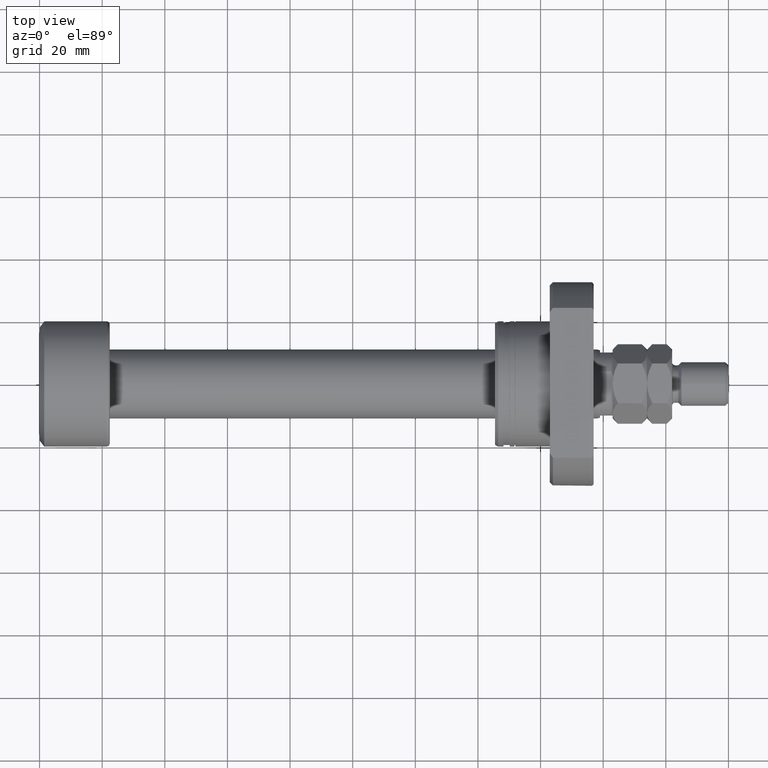
[diagram: clean part render]
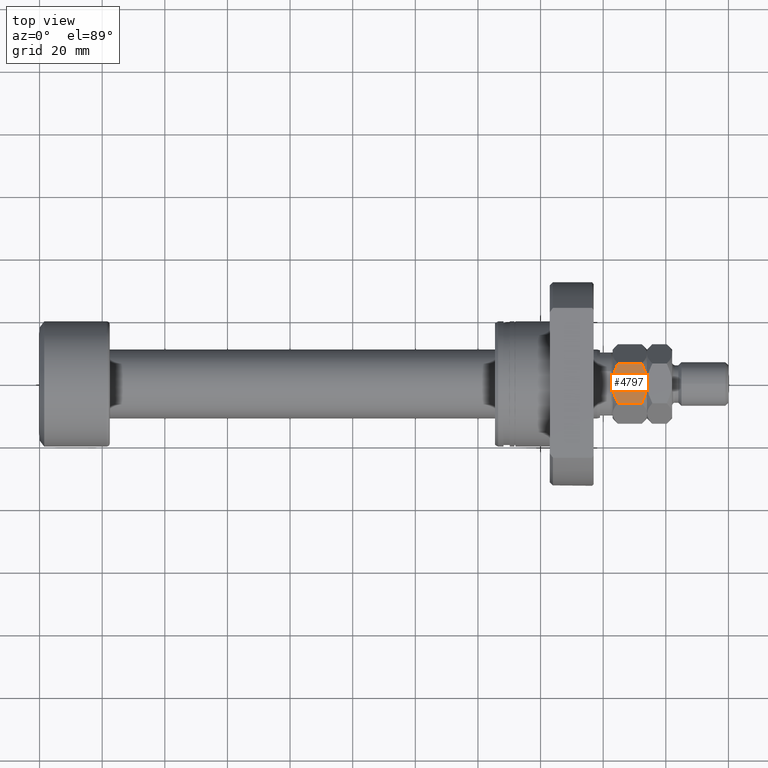
[diagram: same view with one face highlighted and labeled with its STEP entity id]
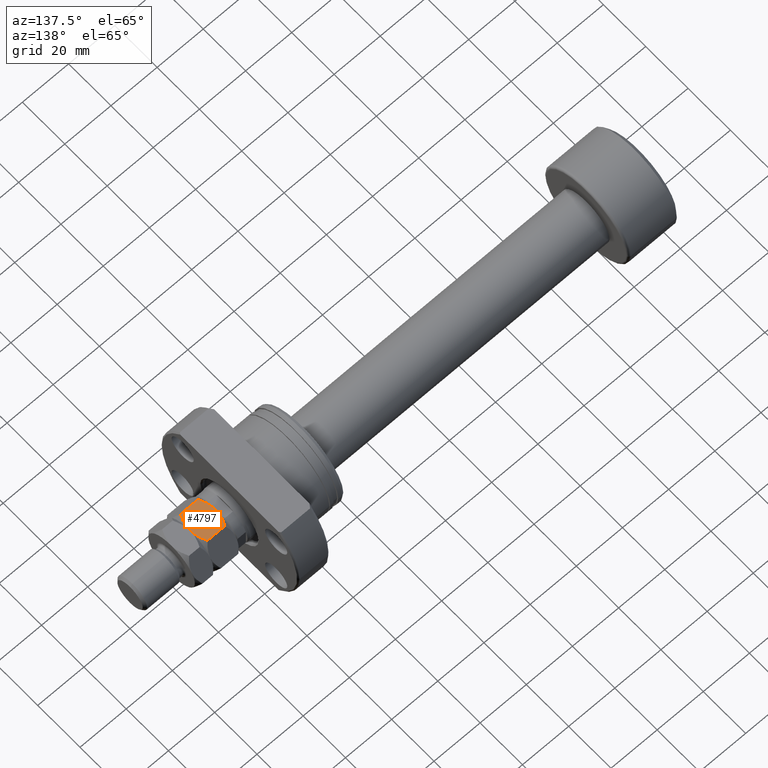
[diagram: same view with one face highlighted and labeled with its STEP entity id]
A machine part, top view. The second image highlights one B-rep face of the part: STEP entity #4797.
A second angle (auxiliary view) of the same face is appended — the face is thin or edge-on in the first view.
In plain terms, the highlighted planar face has unit normal (0, -0, -1).
Its self-contained STEP definition (entity closure, byte-faithful):
#66 = CARTESIAN_POINT ( 'NONE',  ( -11.00000000000000000, 0.000000000000000000, 0.000000000000000000 ) ) ;
#78 = VECTOR ( 'NONE', #696, 1000.000000000000000 ) ;
#179 = CARTESIAN_POINT ( 'NONE',  ( -11.00000000000000000, 6.350852961085890591, 11.00000000000000000 ) ) ;
#228 = CARTESIAN_POINT ( 'NONE',  ( -11.00000000000000000, 6.350852961085890591, 9.298294077828234805 ) ) ;
#300 = VERTEX_POINT ( 'NONE', #66 ) ;
#346 = EDGE_CURVE ( 'NONE', #1484, #2998, #1727, .T. ) ;
#352 = CARTESIAN_POINT ( 'NONE',  ( -11.00000000000000000, -6.350852961085885262, 1.701705922171762309 ) ) ;
#545 = CARTESIAN_POINT ( 'NONE',  ( -10.99999999999999467, 0.000000000000000000, 11.00000000000000000 ) ) ;
#587 = CARTESIAN_POINT ( 'NONE',  ( -11.00000000000000178, 1.381217716854158839, 10.91695300848609840 ) ) ;
#645 = CARTESIAN_POINT ( 'NONE',  ( -10.99999999999999822, 5.363576505757334800, 1.208067694507487744 ) ) ;
#655 = VERTEX_POINT ( 'NONE', #1891 ) ;
#657 = DIRECTION ( 'NONE',  ( -0.000000000000000000, -0.000000000000000000, -1.000000000000000000 ) ) ;
#689 = B_SPLINE_CURVE_WITH_KNOTS ( 'NONE', 3,
 ( #352, #1794, #1840, #1862, #768, #1478, #4775, #4043, #3311, #3267, #2204, #1089 ),
 .UNSPECIFIED., .F., .F.,
 ( 4, 2, 2, 2, 2, 4 ),
 ( 0.01886453216956118784, 0.02051917601608022057, 0.02217381986259925677, 0.02382846370911829298, 0.02465578563237780935, 0.02548310755563732571 ),
 .UNSPECIFIED. ) ;
#696 = DIRECTION ( 'NONE',  ( -0.000000000000000000, -0.000000000000000000, -1.000000000000000000 ) ) ;
#768 = CARTESIAN_POINT ( 'NONE',  ( -11.00000000000000000, -3.802713407336412832, 0.6276910765349058563 ) ) ;
#781 = VERTEX_POINT ( 'NONE', #4213 ) ;
#786 = CARTESIAN_POINT ( 'NONE',  ( -11.00000000000000178, 1.099784029505287197, 0.04170177774201792864 ) ) ;
#872 = VERTEX_POINT ( 'NONE', #228 ) ;
#901 = CARTESIAN_POINT ( 'NONE',  ( -11.00000000000000355, 2.743986917173868889, 10.67427553246086447 ) ) ;
#956 = CARTESIAN_POINT ( 'NONE',  ( -11.00000000000000000, -6.350852961085885262, 9.298294077828238358 ) ) ;
#1045 = CARTESIAN_POINT ( 'NONE',  ( -11.00000000000000000, -6.350852961085885262, 11.00000000000000000 ) ) ;
#1089 = CARTESIAN_POINT ( 'NONE',  ( -11.00000000000000000, 0.000000000000000000, 0.000000000000000000 ) ) ;
#1176 = CARTESIAN_POINT ( 'NONE',  ( -11.00000000000000000, -6.350852961085885262, 9.298294077828238358 ) ) ;
#1371 = CARTESIAN_POINT ( 'NONE',  ( -11.00000000000000178, -1.099784029505286753, 10.95829822225798189 ) ) ;
#1478 = CARTESIAN_POINT ( 'NONE',  ( -11.00000000000000355, -2.743986917173865336, 0.3257244675391401389 ) ) ;
#1484 = VERTEX_POINT ( 'NONE', #1176 ) ;
#1578 = EDGE_CURVE ( 'NONE', #2998, #300, #689, .T. ) ;
#1717 = ORIENTED_EDGE ( 'NONE', *, *, #2213, .F. ) ;
#1722 = DIRECTION ( 'NONE',  ( -0.000000000000000000, 0.000000000000000000, -1.000000000000000000 ) ) ;
#1727 = LINE ( 'NONE', #1045, #2471 ) ;
#1794 = CARTESIAN_POINT ( 'NONE',  ( -10.99999999999999822, -5.856287164594788486, 1.454423023926191938 ) ) ;
#1840 = CARTESIAN_POINT ( 'NONE',  ( -11.00000000000000178, -5.349315167928746284, 1.222704691498690321 ) ) ;
#1862 = CARTESIAN_POINT ( 'NONE',  ( -10.99999999999999822, -4.323029509133801795, 0.8096537352537663823 ) ) ;
#1891 = CARTESIAN_POINT ( 'NONE',  ( -11.00000000000000000, 6.350852961085892368, 1.701705922171765195 ) ) ;
#1927 = EDGE_CURVE ( 'NONE', #872, #655, #2884, .T. ) ;
#2204 = CARTESIAN_POINT ( 'NONE',  ( -11.00000000000000000, -0.2746235576716408167, 4.192813088908779283E-17 ) ) ;
#2213 = EDGE_CURVE ( 'NONE', #300, #655, #3811, .T. ) ;
#2382 = CARTESIAN_POINT ( 'NONE',  ( -10.99999999999999467, 0.000000000000000000, 11.00000000000000000 ) ) ;
#2386 = CARTESIAN_POINT ( 'NONE',  ( -11.00000000000000178, -0.5516605423237683770, 11.00000000000000355 ) ) ;
#2411 = CARTESIAN_POINT ( 'NONE',  ( -11.00000000000000000, -2.731989201781029220, 10.67753305448841772 ) ) ;
#2415 = CARTESIAN_POINT ( 'NONE',  ( -11.00000000000000178, 4.344649988696095200, 0.7819333922108999690 ) ) ;
#2430 = CARTESIAN_POINT ( 'NONE',  ( -11.00000000000000000, 1.102880524211963253, 10.94828572630293273 ) ) ;
#2471 = VECTOR ( 'NONE', #657, 1000.000000000000000 ) ;
#2482 = CARTESIAN_POINT ( 'NONE',  ( -10.99999999999999822, -5.363576505757326807, 9.791932305492514033 ) ) ;
#2610 = AXIS2_PLACEMENT_3D ( 'NONE', #4607, #3836, #1722 ) ;
#2751 = ORIENTED_EDGE ( 'NONE', *, *, #346, .F. ) ;
#2800 = CARTESIAN_POINT ( 'NONE',  ( -11.00000000000000178, -4.344649988696089871, 10.21806660778910114 ) ) ;
#2814 = PLANE ( 'NONE',  #2610 ) ;
#2823 = CARTESIAN_POINT ( 'NONE',  ( -10.99999999999999822, 4.323029509133805348, 10.19034626474623195 ) ) ;
#2843 = CARTESIAN_POINT ( 'NONE',  ( -10.99999999999999822, 2.205563362884376488, 10.79423439979602861 ) ) ;
#2884 = LINE ( 'NONE', #179, #78 ) ;
#2983 = B_SPLINE_CURVE_WITH_KNOTS ( 'NONE', 3,
 ( #545, #2386, #1371, #3524, #2411, #2800, #2482, #956 ),
 .UNSPECIFIED., .F., .F.,
 ( 4, 2, 2, 4 ),
 ( 0.02548310755563732918, 0.02714502201312678914, 0.02880693647061624910, 0.03213076538559517248 ),
 .UNSPECIFIED. ) ;
#2998 = VERTEX_POINT ( 'NONE', #3060 ) ;
#3060 = CARTESIAN_POINT ( 'NONE',  ( -11.00000000000000000, -6.350852961085885262, 1.701705922171762309 ) ) ;
#3092 = CARTESIAN_POINT ( 'NONE',  ( -11.00000000000000000, 0.000000000000000000, 0.000000000000000000 ) ) ;
#3106 = CARTESIAN_POINT ( 'NONE',  ( -10.99999999999999822, 5.856287164594794703, 9.545576976073807174 ) ) ;
#3149 = CARTESIAN_POINT ( 'NONE',  ( -11.00000000000000000, 3.802713407336418605, 10.37230892346509670 ) ) ;
#3190 = ORIENTED_EDGE ( 'NONE', *, *, #4389, .F. ) ;
#3263 = B_SPLINE_CURVE_WITH_KNOTS ( 'NONE', 3,
 ( #3884, #3106, #4318, #2823, #3149, #901, #2843, #587, #2430, #4632, #4659, #2382 ),
 .UNSPECIFIED., .F., .F.,
 ( 4, 2, 2, 2, 2, 4 ),
 ( 0.01886453216956118090, 0.02051917601608021710, 0.02217381986259925331, 0.02382846370911829298, 0.02465578563237780935, 0.02548310755563732918 ),
 .UNSPECIFIED. ) ;
#3267 = CARTESIAN_POINT ( 'NONE',  ( -11.00000000000000178, -0.5501206218979342033, 0.01029861699449343727 ) ) ;
#3311 = CARTESIAN_POINT ( 'NONE',  ( -11.00000000000000000, -1.102880524211966140, 0.05171427369706943500 ) ) ;
#3524 = CARTESIAN_POINT ( 'NONE',  ( -10.99999999999999822, -2.189438957741030478, 10.79717463374928421 ) ) ;
#3575 = CARTESIAN_POINT ( 'NONE',  ( -11.00000000000000000, 6.350852961085892368, 1.701705922171765195 ) ) ;
#3600 = CARTESIAN_POINT ( 'NONE',  ( -11.00000000000000000, 2.731989201781030108, 0.3224669455115858896 ) ) ;
#3791 = EDGE_LOOP ( 'NONE', ( #4330, #2751, #4108, #3190, #4030, #1717 ) ) ;
#3811 = B_SPLINE_CURVE_WITH_KNOTS ( 'NONE', 3,
 ( #3092, #3847, #786, #3866, #3600, #2415, #645, #3575 ),
 .UNSPECIFIED., .F., .F.,
 ( 4, 2, 2, 4 ),
 ( 0.02548310755563732571, 0.02714502201312678914, 0.02880693647061625257, 0.03213076538559517942 ),
 .UNSPECIFIED. ) ;
#3836 = DIRECTION ( 'NONE',  ( 1.000000000000000000, 0.000000000000000000, -0.000000000000000000 ) ) ;
#3847 = CARTESIAN_POINT ( 'NONE',  ( -11.00000000000000178, 0.5516605423237670447, -8.385626177817573357E-17 ) ) ;
#3866 = CARTESIAN_POINT ( 'NONE',  ( -10.99999999999999822, 2.189438957741033587, 0.2028253662507157051 ) ) ;
#3884 = CARTESIAN_POINT ( 'NONE',  ( -11.00000000000000000, 6.350852961085890591, 9.298294077828234805 ) ) ;
#3913 = EDGE_CURVE ( 'NONE', #781, #1484, #2983, .T. ) ;
#4030 = ORIENTED_EDGE ( 'NONE', *, *, #1927, .T. ) ;
#4043 = CARTESIAN_POINT ( 'NONE',  ( -11.00000000000000178, -1.381217716854155286, 0.08304699151390193546 ) ) ;
#4108 = ORIENTED_EDGE ( 'NONE', *, *, #3913, .F. ) ;
#4213 = CARTESIAN_POINT ( 'NONE',  ( -10.99999999999999467, 0.000000000000000000, 11.00000000000000000 ) ) ;
#4318 = CARTESIAN_POINT ( 'NONE',  ( -11.00000000000000178, 5.349315167928749837, 9.777295308501310345 ) ) ;
#4330 = ORIENTED_EDGE ( 'NONE', *, *, #1578, .F. ) ;
#4389 = EDGE_CURVE ( 'NONE', #872, #781, #3263, .T. ) ;
#4607 = CARTESIAN_POINT ( 'NONE',  ( -11.00000000000000000, 6.350852961085890591, 11.00000000000000000 ) ) ;
#4632 = CARTESIAN_POINT ( 'NONE',  ( -11.00000000000000178, 0.5501206218979307616, 10.98970138300551191 ) ) ;
#4652 = FACE_OUTER_BOUND ( 'NONE', #3791, .T. ) ;
#4659 = CARTESIAN_POINT ( 'NONE',  ( -11.00000000000000000, 0.2746235576716384852, 11.00000000000000355 ) ) ;
#4775 = CARTESIAN_POINT ( 'NONE',  ( -10.99999999999999822, -2.205563362884371603, 0.2057656002039695009 ) ) ;
#4797 = ADVANCED_FACE ( 'NONE', ( #4652 ), #2814, .F. ) ;